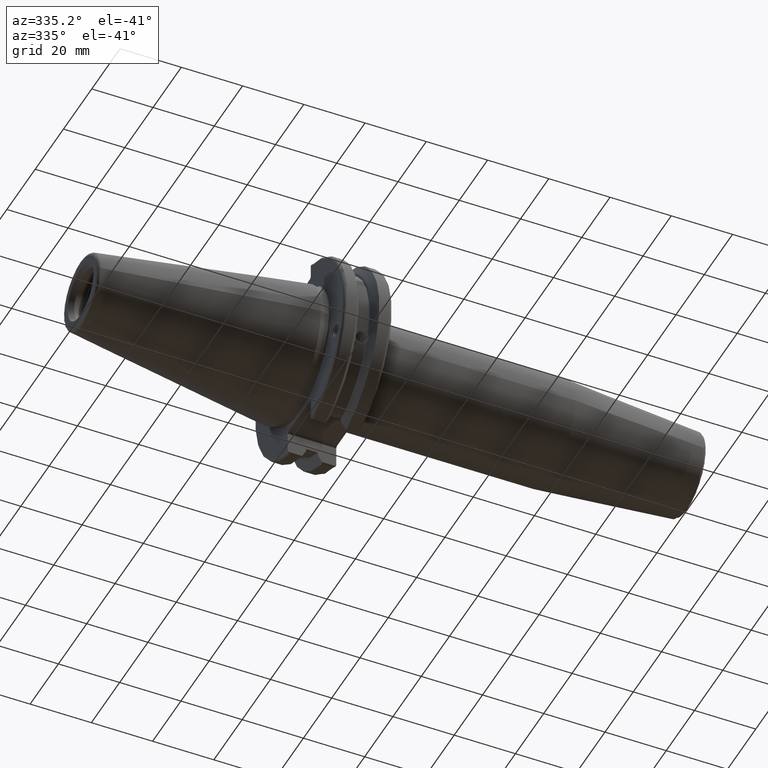
[diagram: clean part render]
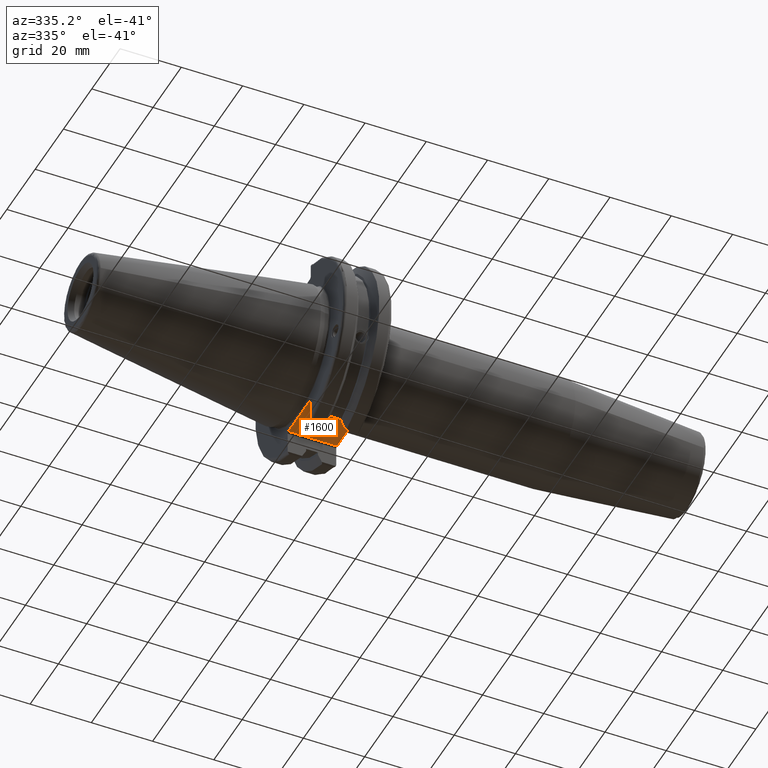
[diagram: same view with one face highlighted and labeled with its STEP entity id]
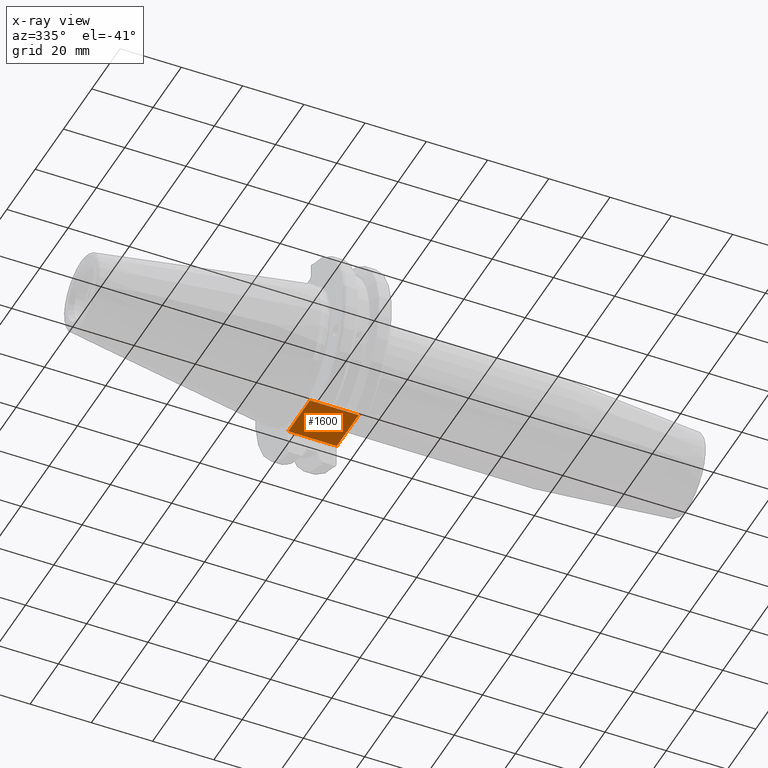
[diagram: x-ray of the same camera — body ghosted, the highlighted face saturated]
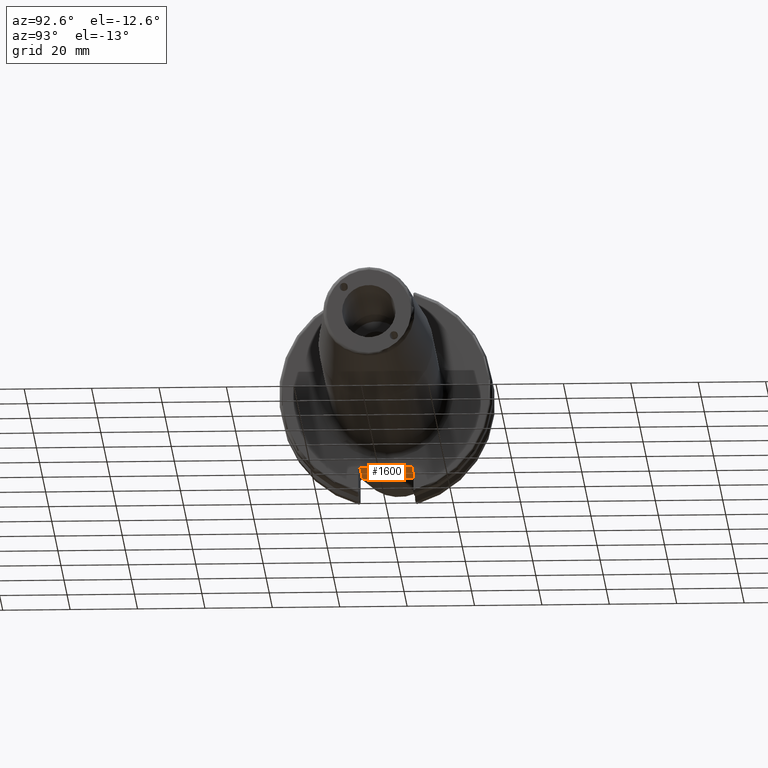
[diagram: same view with one face highlighted and labeled with its STEP entity id]
A machine part, auxiliary view. The second image highlights one B-rep face of the part: STEP entity #1600.
The next image is the same camera in x-ray: the body ghosted, the highlighted face saturated — about 0% of this face is hidden behind the body in this view.
A second angle (auxiliary view) of the same face is appended — the face is thin or edge-on in the first view.
In plain terms, the highlighted planar face has unit normal (0, 0, 1).
Its self-contained STEP definition (entity closure, byte-faithful):
#101=PLANE('',#1798);
#239=FACE_OUTER_BOUND('',#346,.T.);
#346=EDGE_LOOP('',(#1398,#1399,#1400,#1401));
#388=LINE('',#2373,#486);
#433=LINE('',#2816,#531);
#454=LINE('',#3028,#552);
#455=LINE('',#3030,#553);
#486=VECTOR('',#1903,10.);
#531=VECTOR('',#2134,10.);
#552=VECTOR('',#2213,10.);
#553=VECTOR('',#2216,10.);
#669=VERTEX_POINT('',#2370);
#670=VERTEX_POINT('',#2372);
#760=VERTEX_POINT('',#2813);
#761=VERTEX_POINT('',#2815);
#833=EDGE_CURVE('',#669,#670,#388,.T.);
#956=EDGE_CURVE('',#760,#761,#433,.T.);
#1011=EDGE_CURVE('',#670,#760,#454,.T.);
#1012=EDGE_CURVE('',#761,#669,#455,.T.);
#1398=ORIENTED_EDGE('',*,*,#1011,.F.);
#1399=ORIENTED_EDGE('',*,*,#833,.F.);
#1400=ORIENTED_EDGE('',*,*,#1012,.F.);
#1401=ORIENTED_EDGE('',*,*,#956,.F.);
#1600=ADVANCED_FACE('',(#239),#101,.F.);
#1798=AXIS2_PLACEMENT_3D('',#3029,#2214,#2215);
#1903=DIRECTION('',(0.,1.,0.));
#2134=DIRECTION('',(0.,-1.,0.));
#2213=DIRECTION('',(-1.,-1.31581988103722E-16,0.));
#2214=DIRECTION('center_axis',(0.,0.,1.));
#2215=DIRECTION('ref_axis',(1.,0.,0.));
#2216=DIRECTION('',(1.,0.,0.));
#2370=CARTESIAN_POINT('',(19.05,-7.69,-22.6));
#2372=CARTESIAN_POINT('',(19.05,7.69,-22.6));
#2373=CARTESIAN_POINT('',(19.05,-2.77555756156289E-16,-22.6));
#2813=CARTESIAN_POINT('',(3.175,7.69,-22.6));
#2815=CARTESIAN_POINT('',(3.175,-7.69,-22.6));
#2816=CARTESIAN_POINT('',(3.175,15.875,-22.6));
#3028=CARTESIAN_POINT('',(9.44125,7.69,-22.6));
#3029=CARTESIAN_POINT('Origin',(15.7075,-5.55111512312578E-16,-22.6));
#3030=CARTESIAN_POINT('',(17.87875,-7.69,-22.6));